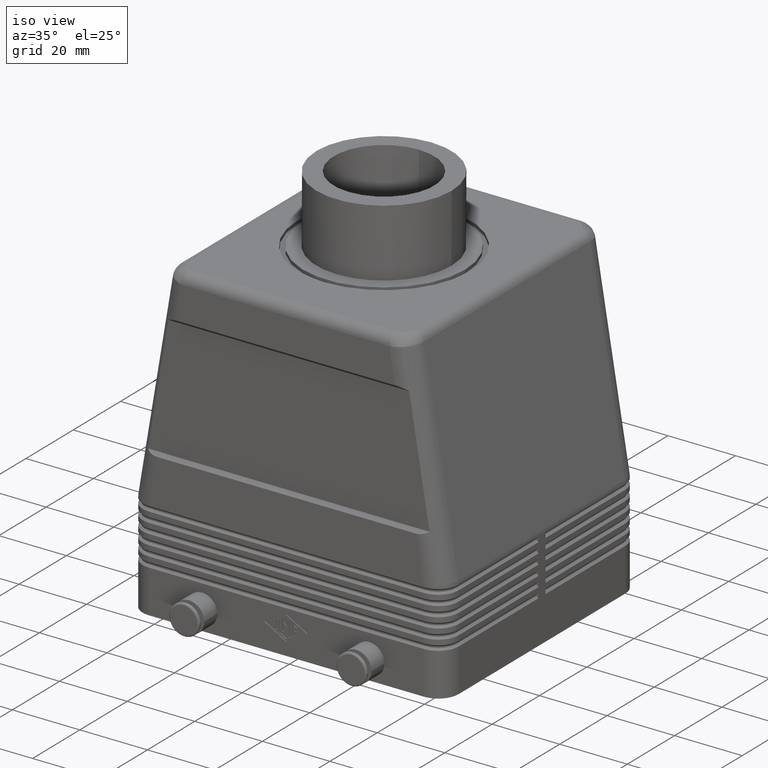
[diagram: clean part render]
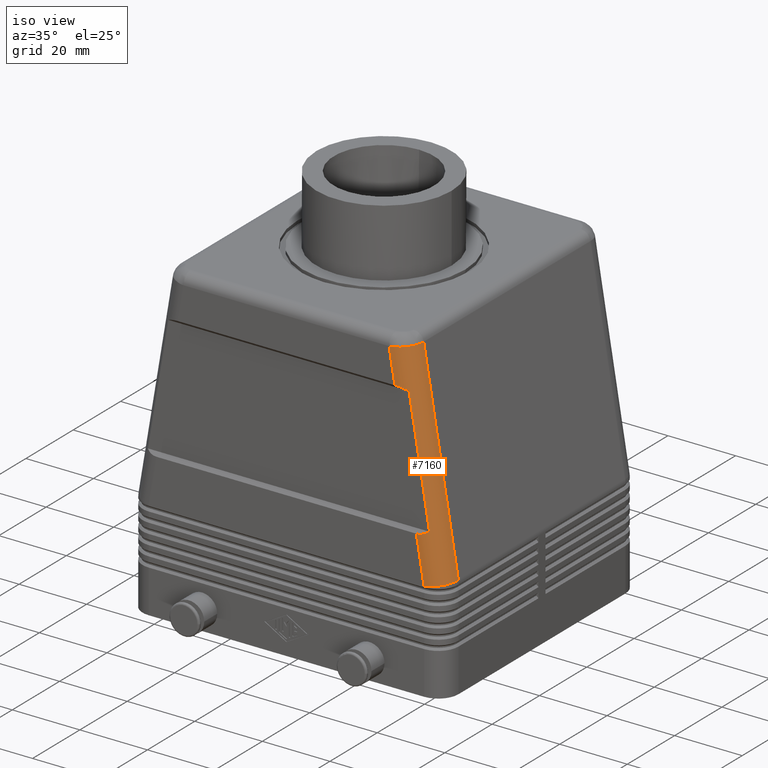
[diagram: same view with one face highlighted and labeled with its STEP entity id]
A machine part, iso view. The second image highlights one B-rep face of the part: STEP entity #7160.
In plain terms, the highlighted cylindrical surface (edge-blend (fillet) strip) has radius 6 mm, axis along (0.1656, 0, -0.9862).
Its self-contained STEP definition (entity closure, byte-faithful):
#3630=CARTESIAN_POINT('',(34.6629053549614,-39.4926403406142,
91.3513929636222));
#3640=CARTESIAN_POINT('',(35.2142606265257,-38.9413384159477,
91.3970540617886));
#3650=CARTESIAN_POINT('',(36.1046276270647,-37.6049734516844,
91.4712190424785));
#3660=CARTESIAN_POINT('',(36.4203871354752,-36.0302834232353,
91.4969407660002));
#3670=CARTESIAN_POINT('',(36.4203871354752,-35.250000088564,
91.4969407660002));
#3680=B_SPLINE_CURVE_WITH_KNOTS('',3,(#3630,#3640,#3650,#3660,#3670),
.UNSPECIFIED.,.F.,.F.,(4,1,4),(0.,0.500119918176357,1.),.UNSPECIFIED.);
#3690=CARTESIAN_POINT('',(34.6629056997134,-39.4926406871193,
91.3513929921732));
#3700=VERTEX_POINT('',#3690);
#3710=CARTESIAN_POINT('',(36.4204350640003,-35.25,91.4969447352542));
#3720=VERTEX_POINT('',#3710);
#3730=EDGE_CURVE('',#3700,#3720,#3680,.T.);
#3750=CARTESIAN_POINT('',(30.4198544721832,-41.25,91.));
#3760=CARTESIAN_POINT('',(32.9053763354266,-41.25,91.2058412490922));
#3770=CARTESIAN_POINT('',(34.6629056997135,-39.4926406871193,
91.3513929921732));
#3780=(BOUNDED_CURVE() B_SPLINE_CURVE(2,(#3750,#3760,#3770),
.UNSPECIFIED.,.F.,.F.) B_SPLINE_CURVE_WITH_KNOTS((3,3),(0.,1.),
.UNSPECIFIED.) CURVE() GEOMETRIC_REPRESENTATION_ITEM() 
RATIONAL_B_SPLINE_CURVE((1.,0.923879532511287,1.)) REPRESENTATION_ITEM(
''));
#3790=CARTESIAN_POINT('',(30.4198544721832,-41.25,91.));
#3800=VERTEX_POINT('',#3790);
#3810=EDGE_CURVE('',#3800,#3700,#3780,.T.);
#4790=CARTESIAN_POINT('',(46.6671094058174,-35.25,30.4934881886221));
#4800=VERTEX_POINT('',#4790);
#6540=CARTESIAN_POINT('',(30.4198544721831,-35.25,91.));
#6550=DIRECTION('',(0.165648245084731,0.,-0.986184900969564));
#6560=DIRECTION('',(-0.986184900969564,0.,-0.165648245084731));
#6570=AXIS2_PLACEMENT_3D('',#6540,#6550,#6560);
#6580=CYLINDRICAL_SURFACE('',#6570,6.00000000000005);
#6590=ORIENTED_EDGE('',*,*,#3730,.F.);
#6600=CARTESIAN_POINT('',(46.6671094058174,-35.25,30.4934881886221));
#6610=DIRECTION('',(-0.165648245084731,0.,0.986184900969564));
#6620=VECTOR('',#6610,1.);
#6630=LINE('',#6600,#6620);
#6640=EDGE_CURVE('',#4800,#3720,#6630,.T.);
#6650=ORIENTED_EDGE('',*,*,#6640,.T.);
#6660=CARTESIAN_POINT('',(40.75,-35.25,29.4995987181137));
#6670=DIRECTION('',(0.16564824508473,0.,-0.986184900969564));
#6680=DIRECTION('',(-0.986184900969564,0.,-0.16564824508473));
#6690=AXIS2_PLACEMENT_3D('',#6660,#6670,#6680);
#6700=CIRCLE('',#6690,6.00000000000002);
#6710=CARTESIAN_POINT('',(40.75,-41.25,29.4995987181137));
#6720=VERTEX_POINT('',#6710);
#6730=EDGE_CURVE('',#4800,#6720,#6700,.T.);
#6740=ORIENTED_EDGE('',*,*,#6730,.F.);
#6750=CARTESIAN_POINT('',(38.4823544721832,-41.25,43.));
#6760=DIRECTION('',(0.165648245084729,0.,-0.986184900969564));
#6770=VECTOR('',#6760,1.);
#6780=LINE('',#6750,#6770);
#6790=CARTESIAN_POINT('',(38.4823544721832,-41.25,43.));
#6800=VERTEX_POINT('',#6790);
#6810=EDGE_CURVE('',#6800,#6720,#6780,.T.);
#6820=ORIENTED_EDGE('',*,*,#6810,.T.);
#6830=CARTESIAN_POINT('',(41.6774718808688,-40.25,44.));
#6840=CARTESIAN_POINT('',(40.3167651041935,-41.25,43.));
#6850=CARTESIAN_POINT('',(38.4823544721832,-41.25,43.));
#6860=(BOUNDED_CURVE() B_SPLINE_CURVE(2,(#6830,#6840,#6850),
.UNSPECIFIED.,.F.,.F.) B_SPLINE_CURVE_WITH_KNOTS((3,3),(0.,1.),
.UNSPECIFIED.) CURVE() GEOMETRIC_REPRESENTATION_ITEM() 
RATIONAL_B_SPLINE_CURVE((1.,0.957427107756338,1.)) REPRESENTATION_ITEM(
''));
#6870=CARTESIAN_POINT('',(41.6774718808687,-40.25,44.));
#6880=VERTEX_POINT('',#6870);
#6890=EDGE_CURVE('',#6880,#6800,#6860,.T.);
#6900=ORIENTED_EDGE('',*,*,#6890,.T.);
#6910=CARTESIAN_POINT('',(33.690659762613,-40.25,91.5493930761269));
#6920=DIRECTION('',(0.165648245084731,0.,-0.986184900969564));
#6930=VECTOR('',#6920,1.);
#6940=LINE('',#6910,#6930);
#6950=CARTESIAN_POINT('',(35.6305968808687,-40.25,80.));
#6960=VERTEX_POINT('',#6950);
#6970=EDGE_CURVE('',#6960,#6880,#6940,.T.);
#6980=ORIENTED_EDGE('',*,*,#6970,.T.);
#6990=CARTESIAN_POINT('',(32.0995419721832,-41.25,81.0000000000001));
#7000=CARTESIAN_POINT('',(33.9339526041935,-41.25,81.0000000000001));
#7010=CARTESIAN_POINT('',(35.6305968808687,-40.25,80.));
#7020=(BOUNDED_CURVE() B_SPLINE_CURVE(2,(#6990,#7000,#7010),
.UNSPECIFIED.,.F.,.F.) B_SPLINE_CURVE_WITH_KNOTS((3,3),(0.,1.),
.UNSPECIFIED.) CURVE() GEOMETRIC_REPRESENTATION_ITEM() 
RATIONAL_B_SPLINE_CURVE((1.,0.957427107756338,1.)) REPRESENTATION_ITEM(
''));
#7030=CARTESIAN_POINT('',(32.0995419721832,-41.25,81.));
#7040=VERTEX_POINT('',#7030);
#7050=EDGE_CURVE('',#7040,#6960,#7020,.T.);
#7060=ORIENTED_EDGE('',*,*,#7050,.T.);
#7070=CARTESIAN_POINT('',(30.4198544721832,-41.25,91.));
#7080=DIRECTION('',(0.165648245084731,0.,-0.986184900969564));
#7090=VECTOR('',#7080,1.);
#7100=LINE('',#7070,#7090);
#7110=EDGE_CURVE('',#3800,#7040,#7100,.T.);
#7120=ORIENTED_EDGE('',*,*,#7110,.T.);
#7130=ORIENTED_EDGE('',*,*,#3810,.F.);
#7140=EDGE_LOOP('',(#7130,#7120,#7060,#6980,#6900,#6820,#6740,#6650,
#6590));
#7150=FACE_OUTER_BOUND('',#7140,.T.);
#7160=ADVANCED_FACE('',(#7150),#6580,.T.);